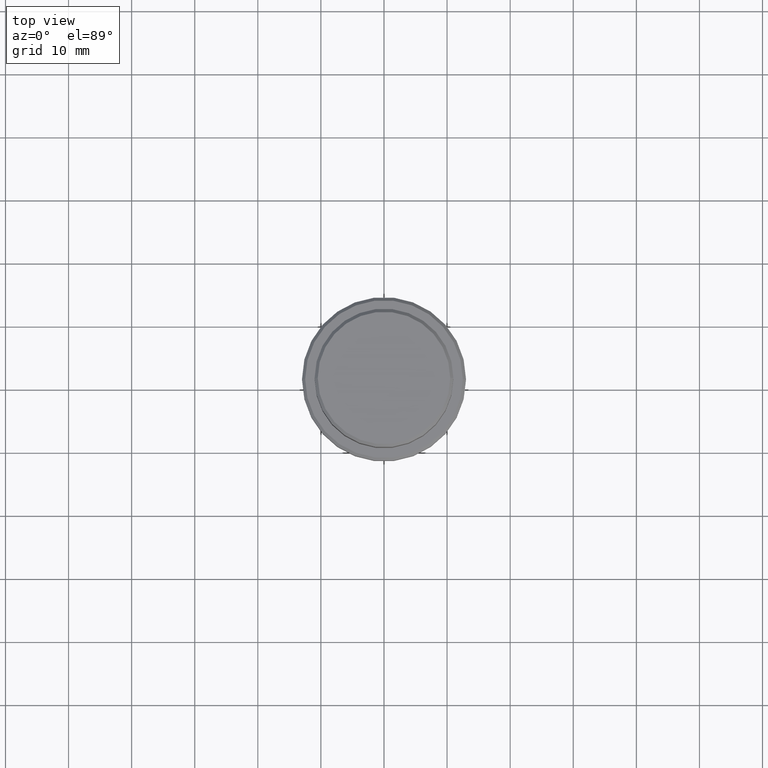
[diagram: clean part render]
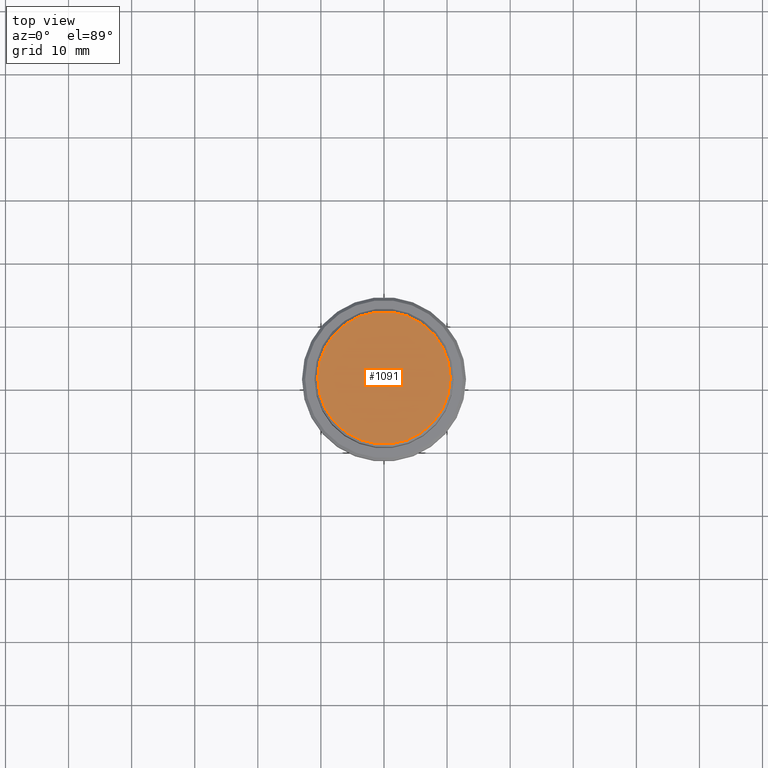
[diagram: same view with one face highlighted and labeled with its STEP entity id]
A machine part, top view. The second image highlights one B-rep face of the part: STEP entity #1091.
In plain terms, the highlighted planar face has unit normal (0, -0, 1).
Its self-contained STEP definition (entity closure, byte-faithful):
#5 = EDGE_CURVE ( 'NONE', #359, #1165, #812, .T. ) ;
#56 = DIRECTION ( 'NONE',  ( 1.000000000000000000, 0.000000000000000000, 0.000000000000000000 ) ) ;
#95 = CARTESIAN_POINT ( 'NONE',  ( -10.50000000000002309, 0.000000000000000000, 0.000000000000000000 ) ) ;
#111 = AXIS2_PLACEMENT_3D ( 'NONE', #807, #791, #696 ) ;
#359 = VERTEX_POINT ( 'NONE', #95 ) ;
#368 = PLANE ( 'NONE',  #111 ) ;
#424 = EDGE_LOOP ( 'NONE', ( #658, #915 ) ) ;
#531 = CIRCLE ( 'NONE', #1294, 10.50000000000002309 ) ;
#658 = ORIENTED_EDGE ( 'NONE', *, *, #5, .T. ) ;
#679 = AXIS2_PLACEMENT_3D ( 'NONE', #1264, #1039, #56 ) ;
#696 = DIRECTION ( 'NONE',  ( 1.000000000000000000, 0.000000000000000000, 0.000000000000000000 ) ) ;
#745 = CARTESIAN_POINT ( 'NONE',  ( 10.50000000000002309, 1.316495309083405209E-15, 0.000000000000000000 ) ) ;
#791 = DIRECTION ( 'NONE',  ( 0.000000000000000000, -0.000000000000000000, 1.000000000000000000 ) ) ;
#807 = CARTESIAN_POINT ( 'NONE',  ( 0.000000000000000000, 0.000000000000000000, 0.000000000000000000 ) ) ;
#812 = CIRCLE ( 'NONE', #679, 10.50000000000002309 ) ;
#895 = DIRECTION ( 'NONE',  ( -0.000000000000000000, -0.000000000000000000, 1.000000000000000000 ) ) ;
#915 = ORIENTED_EDGE ( 'NONE', *, *, #999, .T. ) ;
#999 = EDGE_CURVE ( 'NONE', #1165, #359, #531, .T. ) ;
#1031 = DIRECTION ( 'NONE',  ( 1.000000000000000000, 0.000000000000000000, 0.000000000000000000 ) ) ;
#1039 = DIRECTION ( 'NONE',  ( -0.000000000000000000, -0.000000000000000000, 1.000000000000000000 ) ) ;
#1091 = ADVANCED_FACE ( 'NONE', ( #1376 ), #368, .T. ) ;
#1165 = VERTEX_POINT ( 'NONE', #745 ) ;
#1238 = CARTESIAN_POINT ( 'NONE',  ( 0.000000000000000000, 0.000000000000000000, 0.000000000000000000 ) ) ;
#1264 = CARTESIAN_POINT ( 'NONE',  ( 0.000000000000000000, 0.000000000000000000, 0.000000000000000000 ) ) ;
#1294 = AXIS2_PLACEMENT_3D ( 'NONE', #1238, #895, #1031 ) ;
#1376 = FACE_OUTER_BOUND ( 'NONE', #424, .T. ) ;